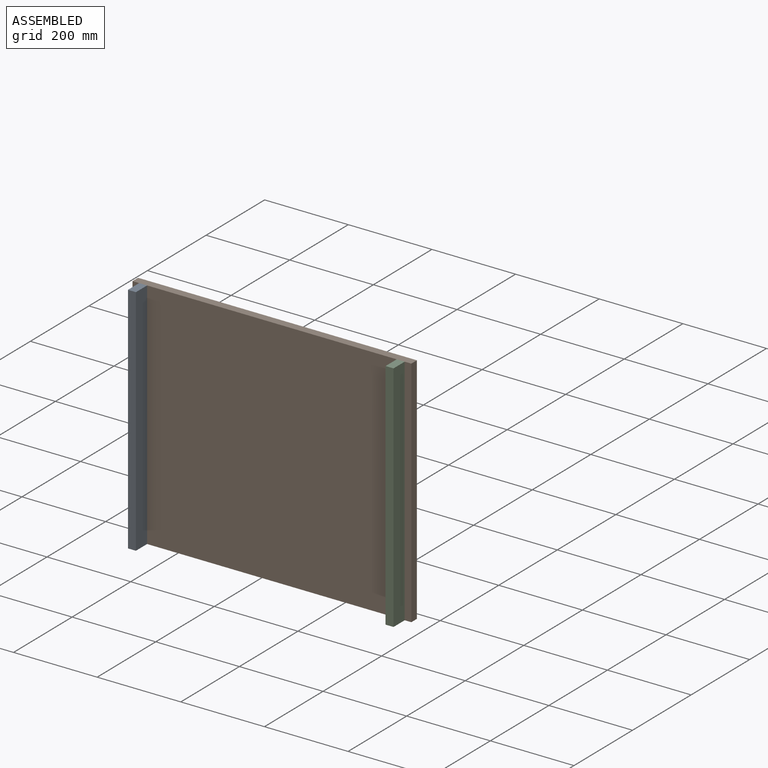
[diagram: assembled view]
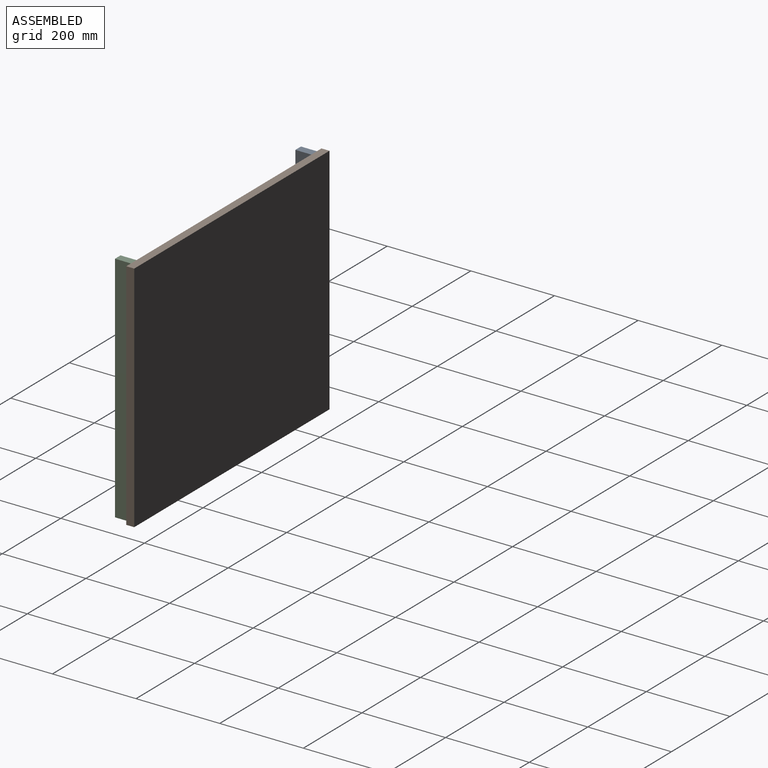
[diagram: assembled view, second angle]
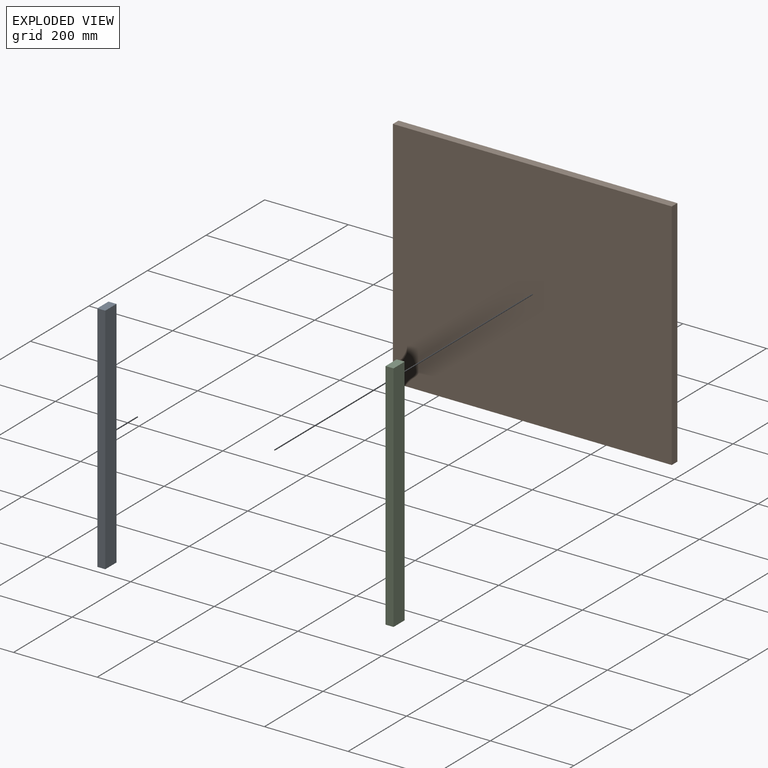
[diagram: exploded view]
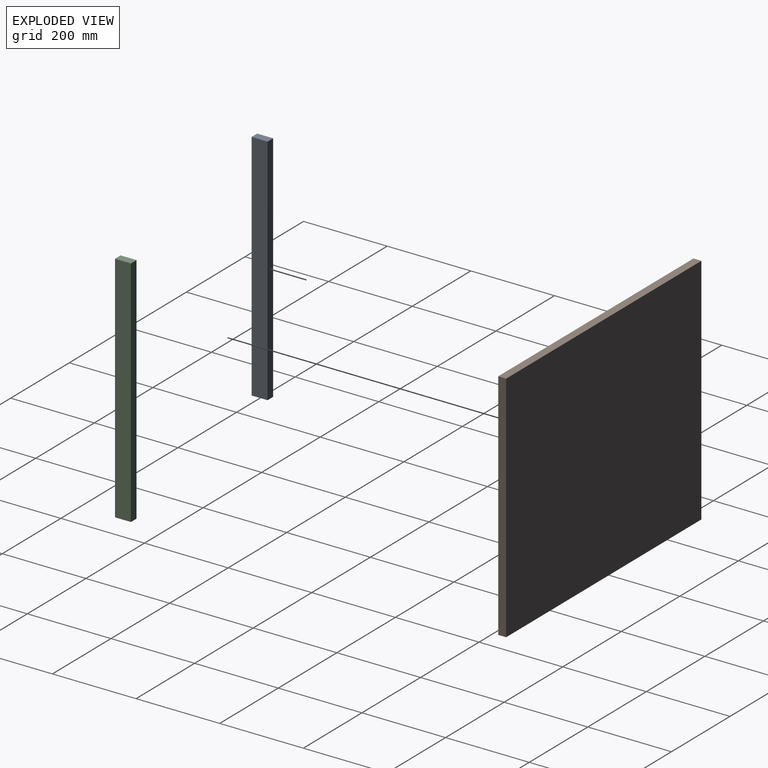
[diagram: exploded view, second angle]
ASSEMBLY  parts=3 mates=2
PART A: 6 faces, bbox 38.1x19.1x558.8 mm
  f0: plane 38.1x19.05mm, normal (0,0,1), area 725.8mm2, adj f1,f3,f4,f5
  f1: plane 558.8x19.05mm, normal (-1,0,0), area 10645.1mm2, adj f0,f2,f4,f5
  f2: plane 38.1x19.05mm, normal (0,0,-1), area 725.8mm2, adj f1,f3,f4,f5
  f3: plane 558.8x19.05mm, normal (1,0,0), area 10645.1mm2, adj f0,f2,f4,f5
  f4: plane 558.8x38.1mm, normal (0,-1,0), area 21290.3mm2, adj f0,f1,f2,f3
  f5: plane 558.8x38.1mm, normal (0,1,0), area 21290.3mm2, adj f0,f1,f2,f3
PART B: 6 faces, bbox 666.8x19.1x558.8 mm
  f0: plane 666.75x19.05mm, normal (0,0,1), area 12701.6mm2, adj f1,f3,f4,f5
  f1: plane 558.8x19.05mm, normal (-1,0,0), area 10645.1mm2, adj f0,f2,f4,f5
  f2: plane 666.75x19.05mm, normal (0,0,-1), area 12701.6mm2, adj f1,f3,f4,f5
  f3: plane 558.8x19.05mm, normal (1,0,0), area 10645.1mm2, adj f0,f2,f4,f5
  f4: plane 666.75x558.8mm, normal (0,-1,0), area 372579.9mm2, adj f0,f1,f2,f3
  f5: plane 666.75x558.8mm, normal (0,1,0), area 372579.9mm2, adj f0,f1,f2,f3
PART C: same geometry as A
PLACE A rot(axis=(0,0,-1),90deg) t=(-57.65,-61.54,-9.91)mm
PLACE B t=(-92.58,-42.49,-9.91)mm
PLACE C rot(axis=(-0.71,-0.71,0),180deg) t=(558.3,-99.64,-568.71)mm
MATE fastened C.f3 <-> B.f4  axis (0,1,0) through (558.3,-61.54,-568.71)mm
MATE fastened A.f1 <-> B.f4  axis (0,1,0) through (-76.7,-61.54,-568.71)mm
